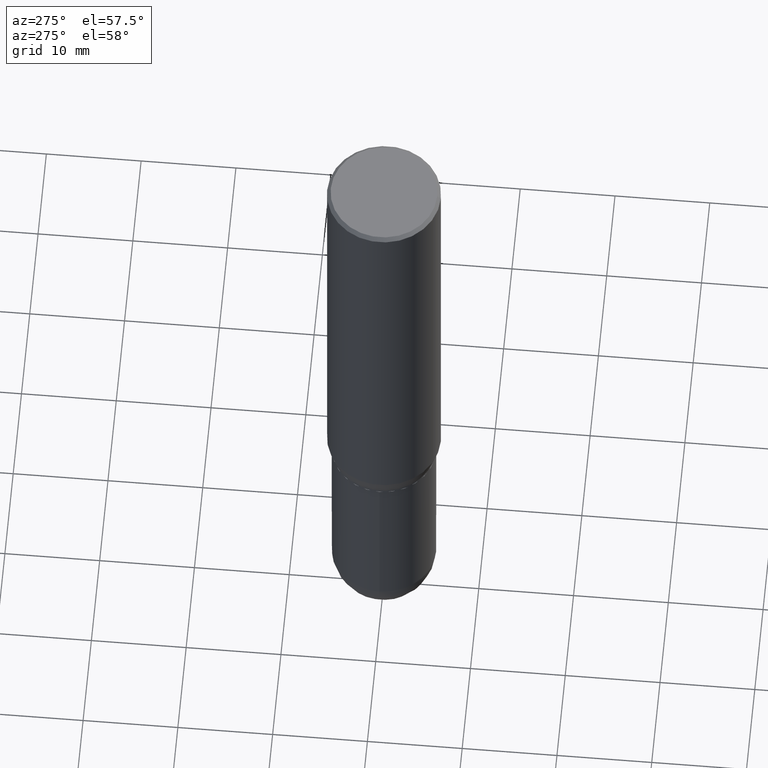
[diagram: clean part render]
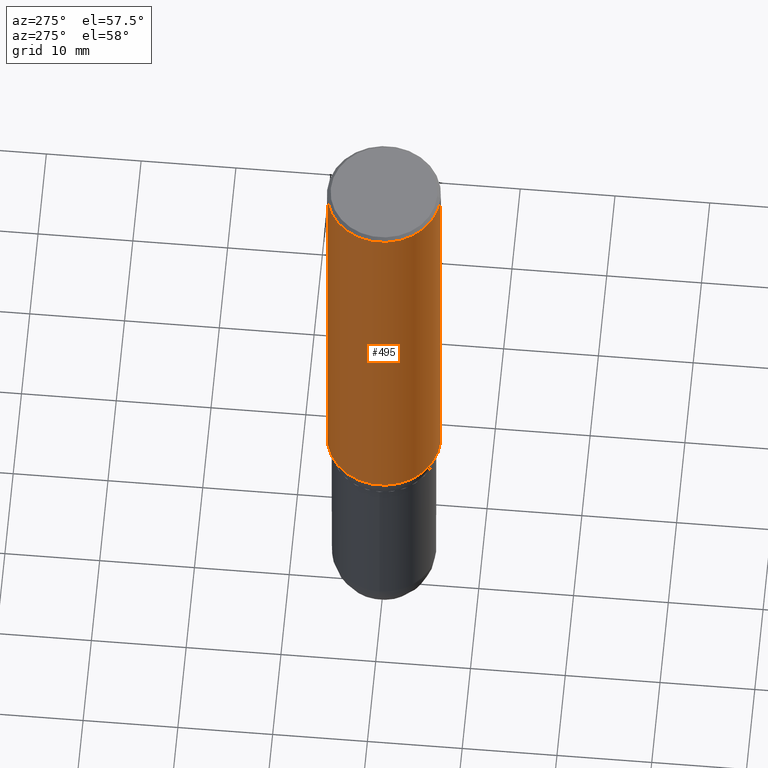
[diagram: same view with one face highlighted and labeled with its STEP entity id]
A machine part, auxiliary view. The second image highlights one B-rep face of the part: STEP entity #495.
In plain terms, the highlighted cylindrical surface (partial cylindrical patch) has radius 5.9995 mm, axis along (-0, 0, 1).
Its self-contained STEP definition (entity closure, byte-faithful):
#29 = CARTESIAN_POINT ( 'NONE',  ( -1.649375784469495934E-15, -0.2361999999999999933, 8.247499937036640282E-16 ) ) ;
#40 = CARTESIAN_POINT ( 'NONE',  ( -1.649375784469495539E-15, -0.2362000000000000766, -0.01499999999999911647 ) ) ;
#49 = CIRCLE ( 'NONE', #350, 0.2361999999999999933 ) ;
#81 = VERTEX_POINT ( 'NONE', #139 ) ;
#112 = CYLINDRICAL_SURFACE ( 'NONE', #242, 0.2361999999999999933 ) ;
#120 = EDGE_LOOP ( 'NONE', ( #374, #301, #404, #191 ) ) ;
#125 = EDGE_CURVE ( 'NONE', #235, #385, #309, .T. ) ;
#137 = DIRECTION ( 'NONE',  ( -2.445285210825420164E-29, 3.491744257847858312E-15, 1.000000000000000000 ) ) ;
#139 = CARTESIAN_POINT ( 'NONE',  ( 1.678301941865403134E-15, 0.2361999999999999655, -0.01500000000000076446 ) ) ;
#141 = DIRECTION ( 'NONE',  ( -6.982962677686265922E-15, -1.000000000000000000, 3.487819265831411744E-15 ) ) ;
#157 = DIRECTION ( 'NONE',  ( -6.982962677686265922E-15, -1.000000000000000000, 3.491744257847857918E-15 ) ) ;
#165 = CARTESIAN_POINT ( 'NONE',  ( 3.667927816238115689E-31, -5.237616386771767056E-17, -0.01499999999999994046 ) ) ;
#186 = DIRECTION ( 'NONE',  ( -2.445285210825420164E-29, 3.491744257847858312E-15, 1.000000000000000000 ) ) ;
#191 = ORIENTED_EDGE ( 'NONE', *, *, #219, .F. ) ;
#211 = CARTESIAN_POINT ( 'NONE',  ( 4.609766587511666285E-29, -6.582514767890587986E-15, -1.885165201631270548 ) ) ;
#219 = EDGE_CURVE ( 'NONE', #81, #277, #49, .T. ) ;
#235 = VERTEX_POINT ( 'NONE', #331 ) ;
#242 = AXIS2_PLACEMENT_3D ( 'NONE', #269, #398, #157 ) ;
#269 = CARTESIAN_POINT ( 'NONE',  ( 0.000000000000000000, 0.000000000000000000, 0.000000000000000000 ) ) ;
#277 = VERTEX_POINT ( 'NONE', #40 ) ;
#284 = DIRECTION ( 'NONE',  ( -2.445285210825420164E-29, 3.491744257847858312E-15, 1.000000000000000000 ) ) ;
#290 = VECTOR ( 'NONE', #186, 39.37007874015748143 ) ;
#291 = EDGE_CURVE ( 'NONE', #385, #277, #479, .T. ) ;
#300 = AXIS2_PLACEMENT_3D ( 'NONE', #211, #379, #377 ) ;
#301 = ORIENTED_EDGE ( 'NONE', *, *, #125, .T. ) ;
#309 = CIRCLE ( 'NONE', #300, 0.2361999999999999933 ) ;
#330 = CARTESIAN_POINT ( 'NONE',  ( 1.678301941865356394E-15, 0.2361999999999999933, -8.247499937036640282E-16 ) ) ;
#331 = CARTESIAN_POINT ( 'NONE',  ( 1.678301941865402543E-15, 0.2361999999999934430, -1.885165201631271215 ) ) ;
#350 = AXIS2_PLACEMENT_3D ( 'NONE', #165, #137, #141 ) ;
#363 = VECTOR ( 'NONE', #284, 39.37007874015748143 ) ;
#372 = LINE ( 'NONE', #330, #363 ) ;
#374 = ORIENTED_EDGE ( 'NONE', *, *, #422, .F. ) ;
#377 = DIRECTION ( 'NONE',  ( -6.982962677686265922E-15, -1.000000000000000000, 3.469747663417777397E-15 ) ) ;
#378 = CARTESIAN_POINT ( 'NONE',  ( -1.649375784469449785E-15, -0.2362000000000065436, -1.885165201631269660 ) ) ;
#379 = DIRECTION ( 'NONE',  ( -2.445285210825420164E-29, 3.491744257847858312E-15, 1.000000000000000000 ) ) ;
#385 = VERTEX_POINT ( 'NONE', #378 ) ;
#398 = DIRECTION ( 'NONE',  ( -2.445285210825420164E-29, 3.491744257847858312E-15, 1.000000000000000000 ) ) ;
#404 = ORIENTED_EDGE ( 'NONE', *, *, #291, .T. ) ;
#422 = EDGE_CURVE ( 'NONE', #235, #81, #372, .T. ) ;
#467 = FACE_OUTER_BOUND ( 'NONE', #120, .T. ) ;
#479 = LINE ( 'NONE', #29, #290 ) ;
#495 = ADVANCED_FACE ( 'NONE', ( #467 ), #112, .T. ) ;